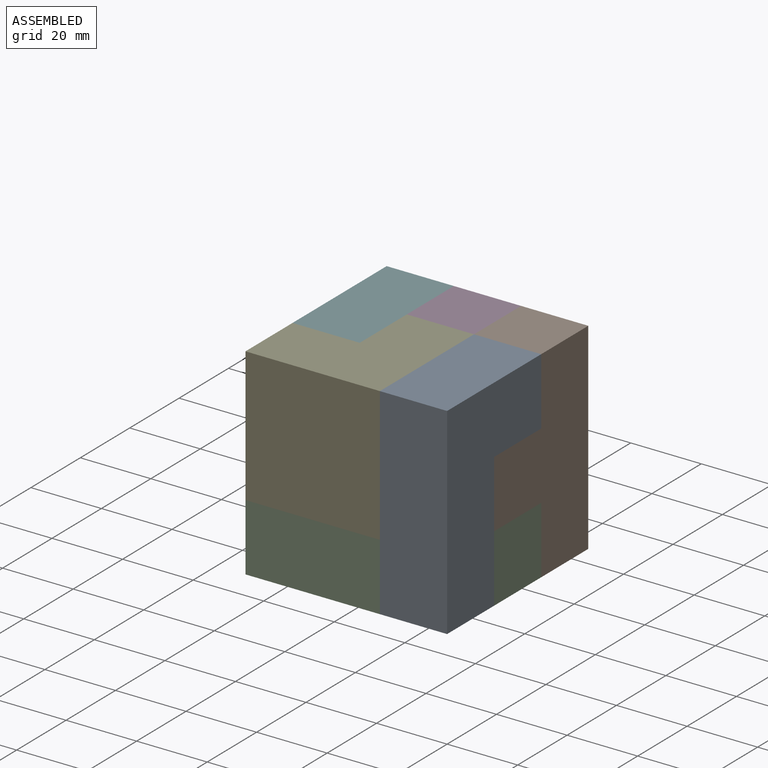
[diagram: assembled view]
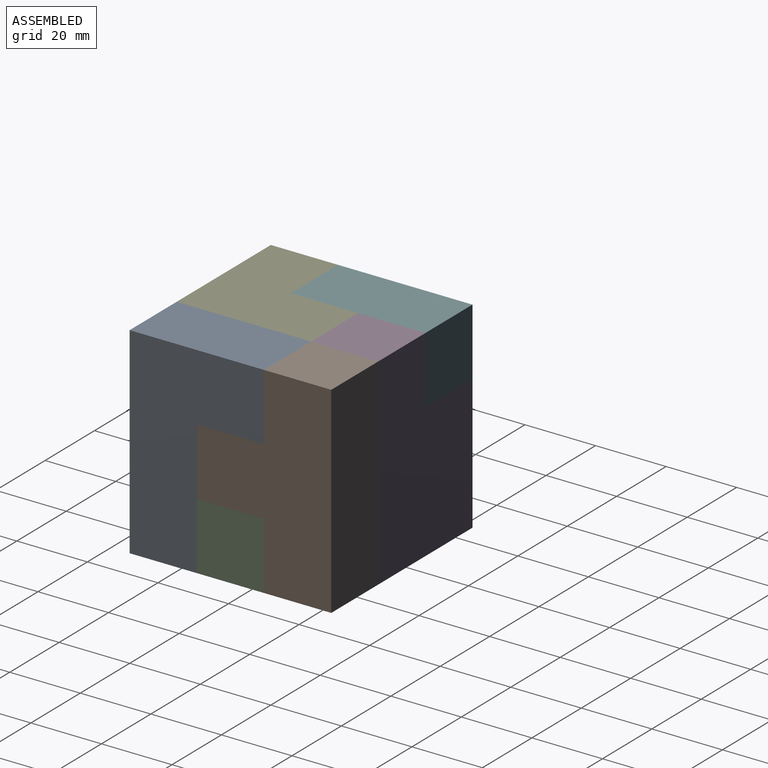
[diagram: assembled view, second angle]
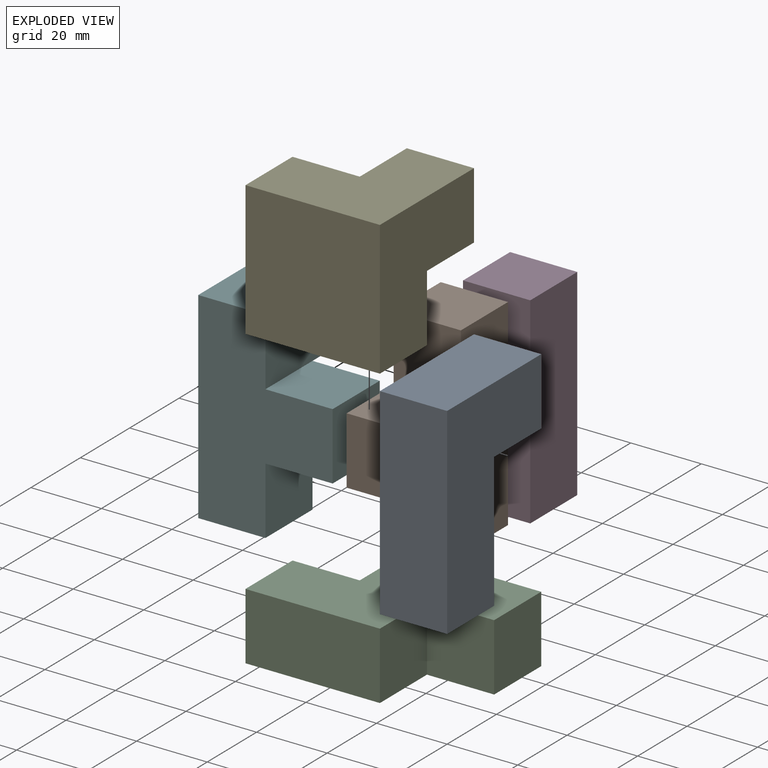
[diagram: exploded view]
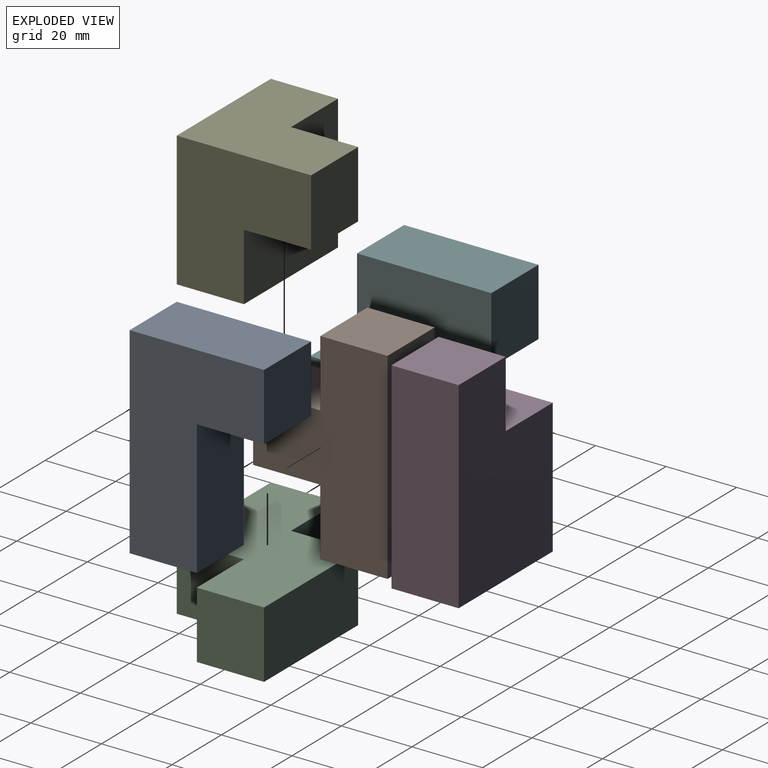
[diagram: exploded view, second angle]
ASSEMBLY  parts=6 mates=5
PART A: 8 faces, bbox 57.2x38.1x19.1 mm
  f0: plane 19.05x19.05mm, normal (0,-1,0), area 362.9mm2, adj f1,f5,f6,f7
  f1: plane 19.05x19.05mm, normal (1,0,0), area 362.9mm2, adj f0,f2,f6,f7
  f2: plane 38.1x19.05mm, normal (0,-1,0), area 725.8mm2, adj f1,f3,f6,f7
  f3: plane 19.05x19.05mm, normal (1,0,0), area 362.9mm2, adj f2,f4,f6,f7
  f4: plane 57.15x19.05mm, normal (0,1,0), area 1088.7mm2, adj f3,f5,f6,f7
  f5: plane 38.1x19.05mm, normal (-1,0,0), area 725.8mm2, adj f0,f4,f6,f7
  f6: plane 57.15x38.1mm, normal (0,0,1), area 1451.6mm2, adj f0,f1,f2,f3,f4,f5
  f7: plane 57.15x38.1mm, normal (0,0,-1), area 1451.6mm2, adj f0,f1,f2,f3,f4,f5
PART B: 10 faces, bbox 57.2x38.1x19.1 mm
  f0: plane 57.15x19.05mm, normal (0,1,0), area 1088.7mm2, adj f1,f7,f8,f9
  f1: plane 19.05x19.05mm, normal (-1,0,0), area 362.9mm2, adj f0,f2,f8,f9
  f2: plane 19.05x19.05mm, normal (0,-1,0), area 362.9mm2, adj f1,f3,f8,f9
  f3: plane 19.05x19.05mm, normal (-1,0,0), area 362.9mm2, adj f2,f4,f8,f9
  f4: plane 19.05x19.05mm, normal (0,-1,0), area 362.9mm2, adj f3,f5,f8,f9
  f5: plane 19.05x19.05mm, normal (1,0,0), area 362.9mm2, adj f4,f6,f8,f9
  f6: plane 19.05x19.05mm, normal (0,-1,0), area 362.9mm2, adj f5,f7,f8,f9
  f7: plane 19.05x19.05mm, normal (1,0,0), area 362.9mm2, adj f0,f6,f8,f9
  f8: plane 57.15x38.1mm, normal (0,0,1), area 1451.6mm2, adj f0,f1,f2,f3,f4,f5,f6,f7
  f9: plane 57.15x38.1mm, normal (0,0,-1), area 1451.6mm2, adj f0,f1,f2,f3,f4,f5,f6,f7
PART C: 10 faces, bbox 57.2x38.1x19.1 mm
  f0: plane 19.05x19.05mm, normal (-1,0,0), area 362.9mm2, adj f1,f7,f8,f9
  f1: plane 38.1x19.05mm, normal (0,-1,0), area 725.8mm2, adj f0,f2,f8,f9
  f2: plane 19.05x19.05mm, normal (1,0,0), area 362.9mm2, adj f1,f3,f8,f9
  f3: plane 19.05x19.05mm, normal (0,-1,0), area 362.9mm2, adj f2,f4,f8,f9
  f4: plane 19.05x19.05mm, normal (1,0,0), area 362.9mm2, adj f3,f5,f8,f9
  f5: plane 38.1x19.05mm, normal (0,1,0), area 725.8mm2, adj f4,f6,f8,f9
  f6: plane 19.05x19.05mm, normal (-1,0,0), area 362.9mm2, adj f5,f7,f8,f9
  f7: plane 19.05x19.05mm, normal (0,1,0), area 362.9mm2, adj f0,f6,f8,f9
  f8: plane 57.15x38.1mm, normal (0,0,1), area 1451.6mm2, adj f0,f1,f2,f3,f4,f5,f6,f7
  f9: plane 57.15x38.1mm, normal (0,0,-1), area 1451.6mm2, adj f0,f1,f2,f3,f4,f5,f6,f7
PART D: 8 faces, bbox 57.2x38.1x19.1 mm
  f0: plane 19.05x19.05mm, normal (-1,0,0), area 362.9mm2, adj f1,f5,f6,f7
  f1: plane 57.15x19.05mm, normal (0,-1,0), area 1088.7mm2, adj f0,f2,f6,f7
  f2: plane 38.1x19.05mm, normal (1,0,0), area 725.8mm2, adj f1,f3,f6,f7
  f3: plane 38.1x19.05mm, normal (0,1,0), area 725.8mm2, adj f2,f4,f6,f7
  f4: plane 19.05x19.05mm, normal (-1,0,0), area 362.9mm2, adj f3,f5,f6,f7
  f5: plane 19.05x19.05mm, normal (0,1,0), area 362.9mm2, adj f0,f4,f6,f7
  f6: plane 57.15x38.1mm, normal (0,0,1), area 1814.5mm2, adj f0,f1,f2,f3,f4,f5
  f7: plane 57.15x38.1mm, normal (0,0,-1), area 1814.5mm2, adj f0,f1,f2,f3,f4,f5
PART E: 9 faces, bbox 38.1x38.1x38.1 mm
  f0: plane 38.1x19.05mm, normal (0,1,0), area 725.8mm2, adj f1,f3,f4,f5
  f1: plane 38.1x38.1mm, normal (-1,0,0), area 1088.7mm2, adj f0,f2,f4,f5,f6,f8
  f2: plane 38.1x38.1mm, normal (0,-1,0), area 1088.7mm2, adj f1,f3,f4,f5,f7,f8
  f3: plane 38.1x19.05mm, normal (1,0,0), area 725.8mm2, adj f0,f2,f4,f5
  f4: plane 38.1x38.1mm, normal (0,0,1), area 1451.6mm2, adj f0,f1,f2,f3
  f5: plane 38.1x38.1mm, normal (0,0,-1), area 1088.7mm2, adj f0,f1,f2,f3,f6,f7
  f6: plane 19.05x19.05mm, normal (0,1,0), area 362.9mm2, adj f1,f5,f7,f8
  f7: plane 19.05x19.05mm, normal (1,0,0), area 362.9mm2, adj f2,f5,f6,f8
  f8: plane 19.05x19.05mm, normal (0,0,-1), area 362.9mm2, adj f1,f2,f6,f7
PART F: 12 faces, bbox 57.2x38.1x38.1 mm
  f0: plane 57.15x38.1mm, normal (0,1,0), area 1451.6mm2, adj f1,f7,f8,f9,f10,f11
  f1: plane 19.05x19.05mm, normal (-1,0,0), area 362.9mm2, adj f0,f2,f8,f9
  f2: plane 19.05x19.05mm, normal (0,-1,0), area 362.9mm2, adj f1,f3,f8,f9
  f3: plane 19.05x19.05mm, normal (-1,0,0), area 362.9mm2, adj f2,f4,f8,f9
  f4: plane 19.05x19.05mm, normal (0,-1,0), area 362.9mm2, adj f3,f5,f8,f9
  f5: plane 19.05x19.05mm, normal (1,0,0), area 362.9mm2, adj f4,f6,f8,f9
  f6: plane 38.1x19.05mm, normal (0,-1,0), area 725.8mm2, adj f5,f7,f8,f10,f11
  f7: plane 38.1x19.05mm, normal (1,0,0), area 725.8mm2, adj f0,f6,f8,f11
  f8: plane 57.15x38.1mm, normal (0,0,1), area 1451.6mm2, adj f0,f1,f2,f3,f4,f5,f6,f7
  f9: plane 38.1x38.1mm, normal (0,0,-1), area 1088.7mm2, adj f0,f1,f2,f3,f4,f5,f10
  f10: plane 19.05x19.05mm, normal (-1,0,0), area 362.9mm2, adj f0,f6,f9,f11
  f11: plane 19.05x19.05mm, normal (0,0,-1), area 362.9mm2, adj f0,f6,f7,f10
PLACE A rot(axis=(0.71,0,-0.71),180deg) t=(0,0,0)mm
PLACE B rot(axis=(0,-1,0),90deg) t=(0,26.78,-26.82)mm
PLACE C t=(-57.15,0,-57.15)mm
PLACE D rot(axis=(-0.58,0.58,0.58),120deg) t=(-19.05,38.1,0)mm
PLACE E rot(axis=(0,-0.71,0.71),180deg) t=(-19.05,19.05,-38.1)mm
PLACE F rot(axis=(0.58,-0.58,0.58),120deg) t=(-26.78,38.1,-26.82)mm
MATE fastened E.f2 <-> A.f5  axis (0,0,1) through (-19.05,38.1,0)mm
MATE fastened B.f8 <-> A.f6  axis (-1,0,0) through (-19.05,38.1,0)mm
MATE fastened F.f0 <-> D.f3  axis (-1,0,0) through (-57.15,38.1,-57.15)mm
MATE fastened D.f6 <-> B.f0  axis (0,1,0) through (-19.05,57.15,-57.15)mm
MATE fastened C.f9 <-> A.f3  axis (0,0,-1) through (0,19.05,-57.15)mm
